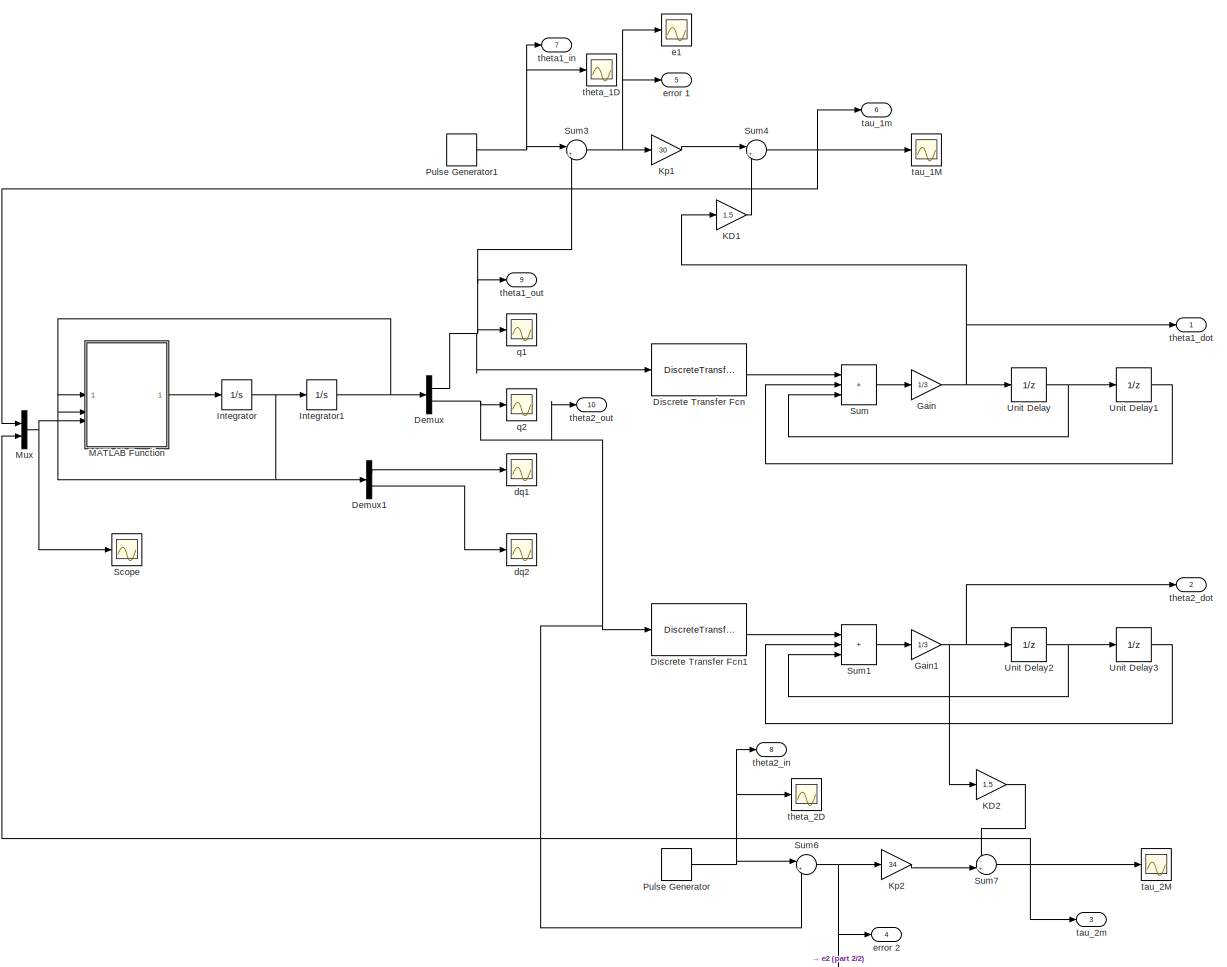
[diagram: root canvas - part 1/2, most of the canvas]
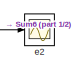
[diagram: root canvas - part 2/2, bottom right region]
MODEL slx_88af3eb73142
KIND model
CONFIG AbsTol = auto
CONFIG EnableMultiTasking = off
CONFIG FixedStep = auto
CONFIG MaxStep = auto
CONFIG MinStep = auto
CONFIG RelTol = 1e-3
CONFIG SampleTimeConstraint = Unconstrained
CONFIG SolverName = VariableStepAuto
CONFIG StartTime = 0.0
CONFIG StopTime = 10.0
BLOCK [Demux] Demux
  Outputs = 2
BLOCK [Demux] Demux1
  Outputs = 2
BLOCK [DiscreteTransferFcn] Discrete Transfer Fcn
  Denominator = [0.001 0]
  InputPortMap = u0
  Numerator = [1 -1]
BLOCK [DiscreteTransferFcn] Discrete Transfer Fcn1
  Denominator = [0.001 0]
  InputPortMap = u0
  Numerator = [1 -1]
BLOCK [Gain] Gain
  Gain = 1/3
BLOCK [Gain] Gain1
  Gain = 1/3
BLOCK [Integrator] Integrator
  InitialCondition = [0;0]
BLOCK [Integrator] Integrator1
  InitialCondition = [pi;pi/2]
BLOCK [Gain] KD1
  Gain = 1.5
BLOCK [Gain] KD2
  Gain = 1.5
BLOCK [Gain] Kp1
  Gain = 30
BLOCK [Gain] Kp2
  Gain = 34
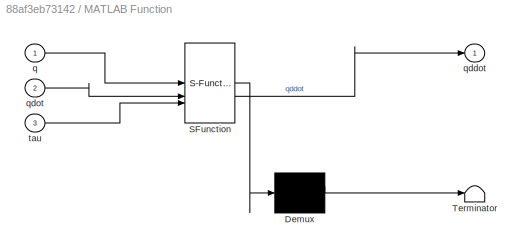
BLOCK [SubSystem] MATLAB Function
  ErrorFcn = Stateflow.Translate.translate
  LibrarySourceBlock = simulink/User-Defined\nFunctions/MATLAB Function
  PermitHierarchicalResolution = ExplicitOnly
  SFBlockType = MATLAB Function
  TreatAsAtomicUnit = on
BLOCK [Demux] MATLAB Function/ Demux 
  Outputs = 1
BLOCK [S-Function] MATLAB Function/ SFunction 
  EnableBusSupport = on
  FunctionName = sf_sfun
  PortCounts = [3 2]
  SFcnIsStateOwnerBlock = off
  SFunctionDeploymentMode = off
  Tag = Stateflow S-Function 2
BLOCK [Terminator] MATLAB Function/ Terminator 
BLOCK [Inport] MATLAB Function/q
BLOCK [Outport] MATLAB Function/qddot
BLOCK [Inport] MATLAB Function/qdot
  Port = 2
BLOCK [Inport] MATLAB Function/tau
  Port = 3
BLOCK [Mux] Mux
  DisplayOption = bar
  Inputs = 2
BLOCK [DiscretePulseGenerator] Pulse Generator
  Amplitude = pi/6
  PulseType = Time based
  PulseWidth = 50
BLOCK [DiscretePulseGenerator] Pulse Generator1
  Amplitude = pi/6
  PulseType = Time based
  PulseWidth = 50
BLOCK [Scope] Scope
  Floating = off
  NumInputPorts = 1
  ScopeSpecificationString = Simulink.scopes.TimeScopeBlockCfg('CurrentConfiguration', extmgr.ConfigurationSet(extmgr.Configuration('Core','General UI',true),extmgr.Configuration('Core','Source UI',true),extmgr.Configuration('Sources','WiredSimulink',true,'DataLoggingVariableName','ScopeData7'),extmgr.Configuration('Visuals','Time Domain',true,'SerializedDisplays',{struct('MinYLimReal','-1871.37638','MaxYLimReal','349.02603',...<+1390ch>
BLOCK [Sum] Sum
  IconShape = rectangular
  Inputs = +++
BLOCK [Sum] Sum1
  IconShape = rectangular
  Inputs = +++
BLOCK [Sum] Sum3
  Inputs = |+-
BLOCK [Sum] Sum4
  Inputs = |+-
BLOCK [Sum] Sum6
  Inputs = |+-
BLOCK [Sum] Sum7
  Inputs = -+|
BLOCK [UnitDelay] Unit Delay
  HasFrameUpgradeWarning = on
  SampleTime = 0.001
BLOCK [UnitDelay] Unit Delay1
  HasFrameUpgradeWarning = on
  SampleTime = 0.001
BLOCK [UnitDelay] Unit Delay2
  HasFrameUpgradeWarning = on
  SampleTime = 0.001
BLOCK [UnitDelay] Unit Delay3
  HasFrameUpgradeWarning = on
  SampleTime = 0.001
BLOCK [Scope] dq1
  Floating = off
  NumInputPorts = 1
  ScopeSpecificationString = Simulink.scopes.TimeScopeBlockCfg('CurrentConfiguration', extmgr.ConfigurationSet(extmgr.Configuration('Core','General UI',true),extmgr.Configuration('Core','Source UI',true),extmgr.Configuration('Sources','WiredSimulink',true,'DataLoggingVariableName','ScopeData2'),extmgr.Configuration('Visuals','Time Domain',true,'SerializedDisplays',{struct('MinYLimReal','-137.79439','MaxYLimReal','26.29167','Y...<+1379ch>
BLOCK [Scope] dq2
  Floating = off
  NumInputPorts = 1
  ScopeSpecificationString = Simulink.scopes.TimeScopeBlockCfg('CurrentConfiguration', extmgr.ConfigurationSet(extmgr.Configuration('Core','General UI',true),extmgr.Configuration('Core','Source UI',true),extmgr.Configuration('Sources','WiredSimulink',true,'DataLoggingVariableName','ScopeData3'),extmgr.Configuration('Visuals','Time Domain',true,'SerializedDisplays',{struct('MinYLimReal','-96.68135','MaxYLimReal','27.50054','YL...<+1373ch>
BLOCK [Scope] e1
  Floating = off
  NumInputPorts = 1
  ScopeSpecificationString = Simulink.scopes.TimeScopeBlockCfg('CurrentConfiguration', extmgr.ConfigurationSet(extmgr.Configuration('Core','General UI',true),extmgr.Configuration('Core','Source UI',true),extmgr.Configuration('Sources','WiredSimulink',true,'DataLoggingVariableName','ScopeData6'),extmgr.Configuration('Visuals','Time Domain',true,'SerializedDisplays',{struct('MinYLimReal','-3.03046','MaxYLimReal','1.09421','YLab...<+1363ch>
BLOCK [Scope] e2
  Floating = off
  NumInputPorts = 1
  ScopeSpecificationString = Simulink.scopes.TimeScopeBlockCfg('CurrentConfiguration', extmgr.ConfigurationSet(extmgr.Configuration('Core','General UI',true),extmgr.Configuration('Core','Source UI',true),extmgr.Configuration('Sources','WiredSimulink',true,'DataLoggingVariableName','ScopeData5'),extmgr.Configuration('Visuals','Time Domain',true,'SerializedDisplays',{struct('MinYLimReal','-1.27023','MaxYLimReal','0.96013','YLab...<+1393ch>
BLOCK [Outport] error 1
  Port = 5
BLOCK [Outport] error 2
  Port = 4
BLOCK [Scope] q1
  Floating = off
  NumInputPorts = 1
  ScopeSpecificationString = Simulink.scopes.TimeScopeBlockCfg('CurrentConfiguration', extmgr.ConfigurationSet(extmgr.Configuration('Core','General UI',true),extmgr.Configuration('Core','Source UI',true),extmgr.Configuration('Sources','WiredSimulink',true),extmgr.Configuration('Visuals','Time Domain',true,'SerializedDisplays',{struct('MinYLimReal','-0.57061','MaxYLimReal','3.55406','YLabelReal','','MinYLimMag','0.00000','MaxY...<+1327ch>
BLOCK [Scope] q2
  Floating = off
  NumInputPorts = 1
  ScopeSpecificationString = Simulink.scopes.TimeScopeBlockCfg('CurrentConfiguration', extmgr.ConfigurationSet(extmgr.Configuration('Core','General UI',true),extmgr.Configuration('Core','Source UI',true),extmgr.Configuration('Sources','WiredSimulink',true,'DataLoggingVariableName','ScopeData1'),extmgr.Configuration('Visuals','Time Domain',true,'SerializedDisplays',{struct('MinYLimReal','-0.43653','MaxYLimReal','1.79383','YLab...<+1366ch>
BLOCK [Scope] tau_1M
  Floating = off
  NumInputPorts = 1
  ScopeSpecificationString = Simulink.scopes.TimeScopeBlockCfg('CurrentConfiguration', extmgr.ConfigurationSet(extmgr.Configuration('Core','General UI',true),extmgr.Configuration('Core','Source UI',true),extmgr.Configuration('Sources','WiredSimulink',true,'DataLoggingVariableName','ScopeData1'),extmgr.Configuration('Visuals','Time Domain',true,'SerializedDisplays',{struct('MinYLimReal','-693.45811','MaxYLimReal','542.89542','...<+1423ch>
BLOCK [Outport] tau_1m
  Port = 6
BLOCK [Scope] tau_2M
  Floating = off
  NumInputPorts = 1
  ScopeSpecificationString = Simulink.scopes.TimeScopeBlockCfg('CurrentConfiguration', extmgr.ConfigurationSet(extmgr.Configuration('Core','General UI',true),extmgr.Configuration('Core','Source UI',true),extmgr.Configuration('Sources','WiredSimulink',true,'DataLoggingVariableName','ScopeData2'),extmgr.Configuration('Visuals','Time Domain',true,'SerializedDisplays',{struct('MinYLimReal','-5.94833','MaxYLimReal','15.22152','YLa...<+1412ch>
BLOCK [Outport] tau_2m
  Port = 3
BLOCK [Outport] theta1_dot
BLOCK [Outport] theta1_in
  Port = 7
BLOCK [Outport] theta1_out
  Port = 9
BLOCK [Outport] theta2_dot
  Port = 2
BLOCK [Outport] theta2_in
  Port = 8
BLOCK [Outport] theta2_out
  Port = 10
BLOCK [Scope] theta_1D
  Floating = off
  NumInputPorts = 1
  ScopeSpecificationString = Simulink.scopes.TimeScopeBlockCfg('CurrentConfiguration', extmgr.ConfigurationSet(extmgr.Configuration('Core','General UI',true),extmgr.Configuration('Core','Source UI',true),extmgr.Configuration('Sources','WiredSimulink',true,'DataLoggingVariableName','ScopeData4'),extmgr.Configuration('Visuals','Time Domain',true,'SerializedDisplays',{struct('MinYLimReal','-0.06545','MaxYLimReal','0.58905','YLab...<+1404ch>
BLOCK [Scope] theta_2D
  Floating = off
  NumInputPorts = 1
  ScopeSpecificationString = Simulink.scopes.TimeScopeBlockCfg('CurrentConfiguration', extmgr.ConfigurationSet(extmgr.Configuration('Core','General UI',true),extmgr.Configuration('Core','Source UI',true),extmgr.Configuration('Sources','WiredSimulink',true,'DataLoggingVariableName','ScopeData3'),extmgr.Configuration('Visuals','Time Domain',true,'SerializedDisplays',{struct('MinYLimReal','-0.06545','MaxYLimReal','0.58905','YLab...<+1403ch>
LINE Demux1:1 -> dq1:1
LINE Demux1:2 -> dq2:1
NET Demux:1 -> Discrete Transfer Fcn:1, Sum3:2, q1:1, theta1_out:1
NET Demux:2 -> Discrete Transfer Fcn1:1, Sum6:2, q2:1, theta2_out:1
LINE Discrete Transfer Fcn1:1 -> Sum1:1
LINE Discrete Transfer Fcn:1 -> Sum:1
NET Gain1:1 -> KD2:1, Unit Delay2:1, theta2_dot:1
NET Gain:1 -> KD1:1, Unit Delay:1, theta1_dot:1
NET Integrator1:1 -> Demux:1, MATLAB Function:1
NET Integrator:1 -> Demux1:1, Integrator1:1, MATLAB Function:2
LINE KD1:1 -> Sum4:2
LINE KD2:1 -> Sum7:1
LINE Kp1:1 -> Sum4:1
LINE Kp2:1 -> Sum7:2
LINE MATLAB Function:1 -> Integrator:1
NET Mux:1 -> MATLAB Function:3, Scope:1
NET Pulse Generator1:1 -> Sum3:1, theta1_in:1, theta_1D:1
NET Pulse Generator:1 -> Sum6:1, theta2_in:1, theta_2D:1
LINE Sum1:1 -> Gain1:1
NET Sum3:1 -> Kp1:1, e1:1, error 1:1
NET Sum4:1 -> Mux:1, tau_1M:1, tau_1m:1
NET Sum6:1 -> Kp2:1, e2:1, error 2:1
NET Sum7:1 -> Mux:2, tau_2M:1, tau_2m:1
LINE Sum:1 -> Gain:1
LINE Unit Delay1:1 -> Sum:2
NET Unit Delay2:1 -> Sum1:3, Unit Delay3:1
LINE Unit Delay3:1 -> Sum1:2
NET Unit Delay:1 -> Sum:3, Unit Delay1:1
note: NET lines group one-source signal fan-out (src -> all destinations, sorted); 1:1 wires keep LINE
CHART MATLAB Function states=1 transitions=1
  STATE_LABEL 'eML_blk_kernel()'
  STATE_LABEL 'SCRIPT:\nfunction qddot = fcn(q, qdot, tau)\np1 = 0.03;\np2 = 0.0128;\np3 = 0.0076;\np4 = 0.0752;\np5 = 0.0298;\n\ntau1 = [tau(1);\n        tau(2)];\ng = 9.81;\n\nD = [p1                 -p3*sin(q(2)-q(1));\n    -p3*sin(q(2)-q(1))  p2];\nC = [0                          -p3*cos(q(2)-q(1))*qdot(2);\n    p3*cos(q(2)-q(1))*qdot(1)   0];\n\nG = [-p4*g*sin(q(1));\n    -p5*g*cos(q(2))];\n\nqddot = D\\tau1-(D\\C)*qdot-D\\G;\n'
CHART  states=0 transitions=0
